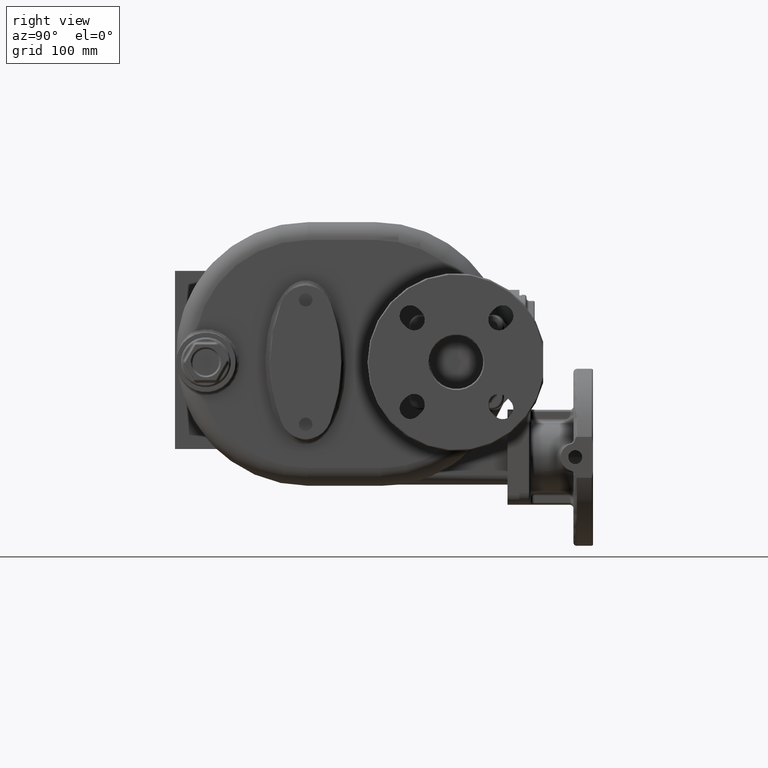
[diagram: clean part render]
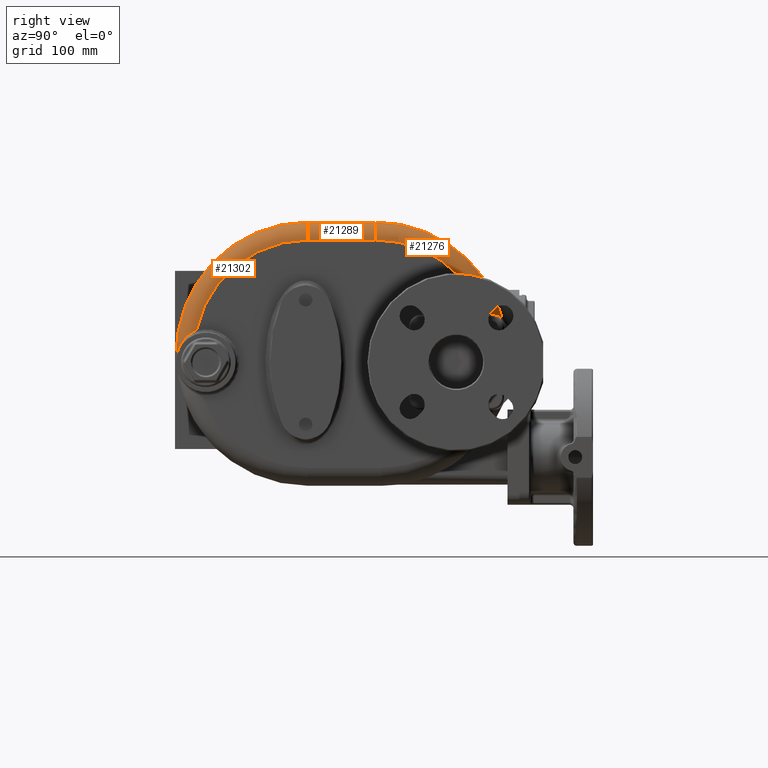
[diagram: same view with one multi-face feature highlighted, each face labeled with its STEP entity id]
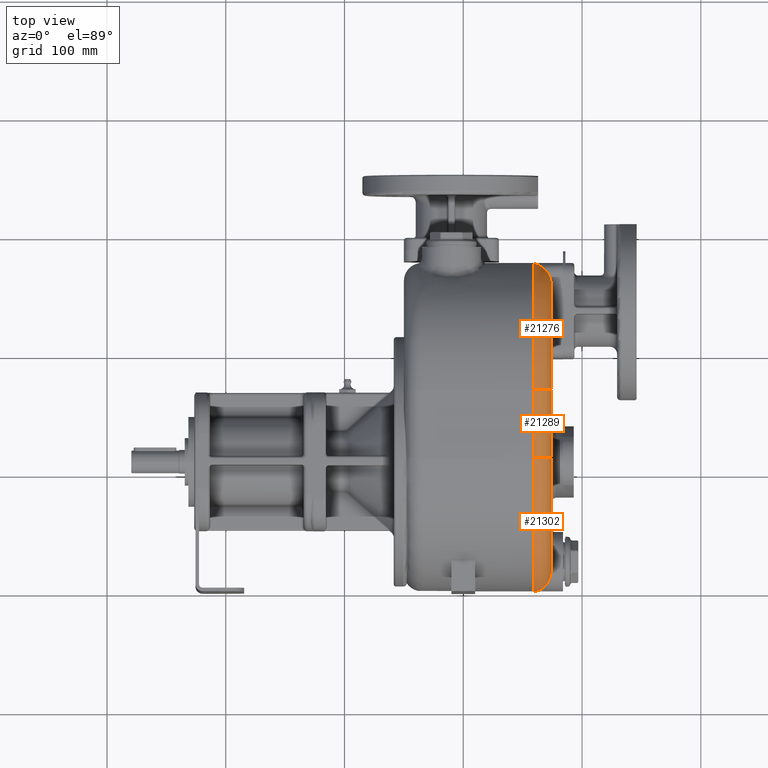
[diagram: same view with one multi-face feature highlighted, each face labeled with its STEP entity id]
A machine part, right view. The highlighted faces form ONE feature: a constant-radius fillet chain: 3 tangent blend faces with common blend radius 15 mm. The faces share edges in the B-rep.
A second angle (top view) of the same feature is appended — it is thin or edge-on in the first view.
Their STEP definitions:
[1] entity #21276 (Torus):
#2358=CARTESIAN_POINT('',(7.4E1,1.690800320256E2,0.E0));
#2359=DIRECTION('',(1.E0,0.E0,0.E0));
#2360=DIRECTION('',(0.E0,9.390612000823E-1,3.4375E-1));
#2361=AXIS2_PLACEMENT_3D('',#2358,#2359,#2360);
#2933=CARTESIAN_POINT('',(5.9E1,1.690800320256E2,0.E0));
#2934=DIRECTION('',(1.E0,0.E0,0.E0));
#2935=DIRECTION('',(0.E0,9.700967764502E-1,2.427184466019E-1));
#2936=AXIS2_PLACEMENT_3D('',#2933,#2934,#2935);
#4100=CARTESIAN_POINT('',(5.9E1,2.767607742116E2,2.694174757282E1));
#4101=CARTESIAN_POINT('',(5.919746839440E1,2.767244377512E2,2.708697709131E1));
#4102=CARTESIAN_POINT('',(5.959189906958E1,2.766437122801E2,2.737502582313E1));
#4103=CARTESIAN_POINT('',(6.018226807365E1,2.764986550011E2,2.779947994443E1));
#4104=CARTESIAN_POINT('',(6.076909059535E1,2.763304765588E2,2.821413964939E1));
#4105=CARTESIAN_POINT('',(6.135126870455E1,2.761398978827E2,2.861772689282E1));
#4106=CARTESIAN_POINT('',(6.192652221193E1,2.759281828301E2,2.900820952384E1));
#4107=CARTESIAN_POINT('',(6.249400524739E1,2.756962599716E2,2.938461357047E1));
#4108=CARTESIAN_POINT('',(6.305169911184E1,2.754456507436E2,2.974525286864E1));
#4109=CARTESIAN_POINT('',(6.359874964708E1,2.751775402531E2,3.008929529776E1));
#4110=CARTESIAN_POINT('',(6.413378455740E1,2.748934390566E2,3.041564278407E1));
#4111=CARTESIAN_POINT('',(6.465549847296E1,2.745949950051E2,3.072334993618E1));
#4112=CARTESIAN_POINT('',(6.516348937629E1,2.742834123424E2,3.101207436872E1));
#4113=CARTESIAN_POINT('',(6.565622520677E1,2.739606740147E2,3.128091283102E1));
#4114=CARTESIAN_POINT('',(6.613358402329E1,2.736279684324E2,3.152984096668E1));
#4115=CARTESIAN_POINT('',(6.659495161829E1,2.732868080250E2,3.175860693396E1));
#4116=CARTESIAN_POINT('',(6.703939250637E1,2.729390623369E2,3.196691293706E1));
#4117=CARTESIAN_POINT('',(6.746733062942E1,2.725855783424E2,3.215516750526E1));
#4118=CARTESIAN_POINT('',(6.787830842109E1,2.722278751530E2,3.232339614360E1));
#4119=CARTESIAN_POINT('',(6.827171179971E1,2.718677220485E2,3.247168145780E1));
#4120=CARTESIAN_POINT('',(6.864818580608E1,2.715057571573E2,3.260064095354E1));
#4121=CARTESIAN_POINT('',(6.900798622962E1,2.711428920063E2,3.271072580022E1));
#4122=CARTESIAN_POINT('',(6.935110827882E1,2.707802913629E2,3.280233887067E1));
#4123=CARTESIAN_POINT('',(6.967763384464E1,2.704190635248E2,3.287597545347E1));
#4124=CARTESIAN_POINT('',(6.998847065243E1,2.700593372848E2,3.293230015917E1));
#4125=CARTESIAN_POINT('',(7.028345301758E1,2.697024194876E2,3.297176426617E1));
#4126=CARTESIAN_POINT('',(7.056321356358E1,2.693486755321E2,3.299498251427E1));
#4127=CARTESIAN_POINT('',(7.073960245047E1,2.691156670345E2,3.3E1));
#4128=CARTESIAN_POINT('',(7.082531400098E1,2.69E2,3.3E1));
#4130=CARTESIAN_POINT('',(7.082531400098E1,2.69E2,3.3E1));
#4131=CARTESIAN_POINT('',(7.093651673634E1,2.688499328205E2,3.3E1));
#4132=CARTESIAN_POINT('',(7.115385606143E1,2.685453931682E2,3.3E1));
#4133=CARTESIAN_POINT('',(7.146479466459E1,2.680749577905E2,3.3E1));
#4134=CARTESIAN_POINT('',(7.175986972182E1,2.675918234654E2,3.3E1));
#4135=CARTESIAN_POINT('',(7.203879027929E1,2.670961937543E2,3.3E1));
#4136=CARTESIAN_POINT('',(7.230087186102E1,2.665890003929E2,3.3E1));
#4137=CARTESIAN_POINT('',(7.254588563776E1,2.660703604195E2,3.3E1));
#4138=CARTESIAN_POINT('',(7.277311023258E1,2.655414812383E2,3.3E1));
#4139=CARTESIAN_POINT('',(7.298238926181E1,2.650023732337E2,3.3E1));
#4140=CARTESIAN_POINT('',(7.317306629343E1,2.644543438937E2,3.3E1));
#4141=CARTESIAN_POINT('',(7.334496570226E1,2.638975145609E2,3.3E1));
#4142=CARTESIAN_POINT('',(7.349758226805E1,2.633330365235E2,3.3E1));
#4143=CARTESIAN_POINT('',(7.363063964581E1,2.627615297048E2,3.3E1));
#4144=CARTESIAN_POINT('',(7.374385511951E1,2.621836104233E2,3.3E1));
#4145=CARTESIAN_POINT('',(7.383688466086E1,2.616005349381E2,3.3E1));
#4146=CARTESIAN_POINT('',(7.390958458452E1,2.610124800344E2,3.3E1));
#4147=CARTESIAN_POINT('',(7.396166028127E1,2.604210866882E2,3.3E1));
#4148=CARTESIAN_POINT('',(7.399301759199E1,2.598264456987E2,3.3E1));
#4149=CARTESIAN_POINT('',(7.4E1,2.594289881420E2,3.3E1));
#4150=CARTESIAN_POINT('',(7.4E1,2.592299072335E2,3.3E1));
#4152=CARTESIAN_POINT('',(5.9E1,1.690800320256E2,9.6E1));
#4153=DIRECTION('',(0.E0,-1.E0,0.E0));
#4154=DIRECTION('',(1.E0,0.E0,0.E0));
#4155=AXIS2_PLACEMENT_3D('',#4152,#4153,#4154);
#13499=CARTESIAN_POINT('',(7.4E1,1.690800320256E2,9.6E1));
#13501=VERTEX_POINT('',#13499);
#13503=CARTESIAN_POINT('',(5.9E1,1.690800320256E2,1.11E2));
#13505=VERTEX_POINT('',#13503);
#13507=CARTESIAN_POINT('',(7.4E1,2.592299072335E2,3.3E1));
#13508=VERTEX_POINT('',#13507);
#13509=CARTESIAN_POINT('',(5.9E1,2.767607742116E2,2.694174757282E1));
#13510=VERTEX_POINT('',#13509);
#13511=VERTEX_POINT('',#4128);
#21262=CARTESIAN_POINT('',(5.9E1,1.690800320256E2,0.E0));
#21263=DIRECTION('',(-1.E0,0.E0,0.E0));
#21264=DIRECTION('',(0.E0,9.718786015261E-1,2.354824492305E-1));
#21265=AXIS2_PLACEMENT_3D('',#21262,#21263,#21264);
#21266=TOROIDAL_SURFACE('',#21265,9.6E1,1.5E1);
#21267=ORIENTED_EDGE('',*,*,#18890,.T.);
#21269=ORIENTED_EDGE('',*,*,#21268,.T.);
#21270=ORIENTED_EDGE('',*,*,#19246,.F.);
#21271=ORIENTED_EDGE('',*,*,#18731,.T.);
#21273=ORIENTED_EDGE('',*,*,#21272,.T.);
#21274=EDGE_LOOP('',(#21267,#21269,#21270,#21271,#21273));
#21275=FACE_OUTER_BOUND('',#21274,.F.);
#21276=ADVANCED_FACE('',(#21275),#21266,.T.);
#2362=CIRCLE('',#2361,9.6E1);
#2937=CIRCLE('',#2936,1.11E2);
#4129=B_SPLINE_CURVE_WITH_KNOTS('',3,(#4100,#4101,#4102,#4103,#4104,#4105,#4106,
#4107,#4108,#4109,#4110,#4111,#4112,#4113,#4114,#4115,#4116,#4117,#4118,#4119,
#4120,#4121,#4122,#4123,#4124,#4125,#4126,#4127,#4128),.UNSPECIFIED.,.F.,.F.,(4,
1,1,1,1,1,1,1,1,1,1,1,1,1,1,1,1,1,1,1,1,1,1,1,1,1,4),(0.E0,3.846153846154E-2,
7.692307692308E-2,1.153846153846E-1,1.538461538462E-1,1.923076923077E-1,
2.307692307692E-1,2.692307692308E-1,3.076923076923E-1,3.461538461538E-1,
3.846153846154E-1,4.230769230769E-1,4.615384615385E-1,5.E-1,5.384615384615E-1,
5.769230769231E-1,6.153846153846E-1,6.538461538462E-1,6.923076923077E-1,
7.307692307692E-1,7.692307692308E-1,8.076923076923E-1,8.461538461538E-1,
8.846153846154E-1,9.230769230769E-1,9.615384615385E-1,1.E0),.UNSPECIFIED.);
#4151=B_SPLINE_CURVE_WITH_KNOTS('',3,(#4130,#4131,#4132,#4133,#4134,#4135,#4136,
#4137,#4138,#4139,#4140,#4141,#4142,#4143,#4144,#4145,#4146,#4147,#4148,#4149,
#4150),.UNSPECIFIED.,.F.,.F.,(4,1,1,1,1,1,1,1,1,1,1,1,1,1,1,1,1,1,4),(0.E0,
5.555555555556E-2,1.111111111111E-1,1.666666666667E-1,2.222222222222E-1,
2.777777777778E-1,3.333333333333E-1,3.888888888889E-1,4.444444444444E-1,5.E-1,
5.555555555556E-1,6.111111111111E-1,6.666666666667E-1,7.222222222222E-1,
7.777777777778E-1,8.333333333333E-1,8.888888888889E-1,9.444444444444E-1,1.E0),
.UNSPECIFIED.);
#4156=CIRCLE('',#4155,1.5E1);
#18731=EDGE_CURVE('',#13510,#13511,#4129,.T.);
#18890=EDGE_CURVE('',#13508,#13501,#2362,.T.);
#19246=EDGE_CURVE('',#13510,#13505,#2937,.T.);
#21268=EDGE_CURVE('',#13501,#13505,#4156,.T.);
#21272=EDGE_CURVE('',#13511,#13508,#4151,.T.);
[2] entity #21289 (Cylinder):
#2354=DIRECTION('',(0.E0,-1.E0,0.E0));
#2355=VECTOR('',#2354,5.708003202563E1);
#2356=CARTESIAN_POINT('',(7.4E1,1.690800320256E2,9.6E1));
#2357=LINE('',#2356,#2355);
#2870=DIRECTION('',(0.E0,-1.E0,0.E0));
#2871=VECTOR('',#2870,5.708003202559E1);
#2872=CARTESIAN_POINT('',(5.9E1,1.690800320256E2,1.11E2));
#2873=LINE('',#2872,#2871);
#4152=CARTESIAN_POINT('',(5.9E1,1.690800320256E2,9.6E1));
#4153=DIRECTION('',(0.E0,-1.E0,0.E0));
#4154=DIRECTION('',(1.E0,0.E0,0.E0));
#4155=AXIS2_PLACEMENT_3D('',#4152,#4153,#4154);
#4217=CARTESIAN_POINT('',(5.9E1,1.12E2,9.6E1));
#4218=DIRECTION('',(0.E0,-1.E0,0.E0));
#4219=DIRECTION('',(1.E0,0.E0,0.E0));
#4220=AXIS2_PLACEMENT_3D('',#4217,#4218,#4219);
#13499=CARTESIAN_POINT('',(7.4E1,1.690800320256E2,9.6E1));
#13500=CARTESIAN_POINT('',(7.4E1,1.12E2,9.6E1));
#13501=VERTEX_POINT('',#13499);
#13502=VERTEX_POINT('',#13500);
#13503=CARTESIAN_POINT('',(5.9E1,1.690800320256E2,1.11E2));
#13504=CARTESIAN_POINT('',(5.9E1,1.12E2,1.11E2));
#13505=VERTEX_POINT('',#13503);
#13506=VERTEX_POINT('',#13504);
#21277=CARTESIAN_POINT('',(5.9E1,1.699072227307E2,9.6E1));
#21278=DIRECTION('',(0.E0,-1.E0,0.E0));
#21279=DIRECTION('',(1.E0,0.E0,0.E0));
#21280=AXIS2_PLACEMENT_3D('',#21277,#21278,#21279);
#21281=CYLINDRICAL_SURFACE('',#21280,1.5E1);
#21282=ORIENTED_EDGE('',*,*,#18888,.T.);
#21284=ORIENTED_EDGE('',*,*,#21283,.T.);
#21285=ORIENTED_EDGE('',*,*,#19232,.F.);
#21286=ORIENTED_EDGE('',*,*,#21268,.F.);
#21287=EDGE_LOOP('',(#21282,#21284,#21285,#21286));
#21288=FACE_OUTER_BOUND('',#21287,.F.);
#21289=ADVANCED_FACE('',(#21288),#21281,.T.);
#4156=CIRCLE('',#4155,1.5E1);
#4221=CIRCLE('',#4220,1.5E1);
#18888=EDGE_CURVE('',#13501,#13502,#2357,.T.);
#19232=EDGE_CURVE('',#13505,#13506,#2873,.T.);
#21268=EDGE_CURVE('',#13501,#13505,#4156,.T.);
#21283=EDGE_CURVE('',#13502,#13506,#4221,.T.);
[3] entity #21302 (Torus):
#2349=CARTESIAN_POINT('',(7.4E1,1.12E2,0.E0));
#2350=DIRECTION('',(1.E0,0.E0,0.E0));
#2351=DIRECTION('',(0.E0,0.E0,1.E0));
#2352=AXIS2_PLACEMENT_3D('',#2349,#2350,#2351);
#2710=CARTESIAN_POINT('',(5.9E1,1.12E2,0.E0));
#2711=DIRECTION('',(1.E0,0.E0,0.E0));
#2712=DIRECTION('',(0.E0,0.E0,1.E0));
#2713=AXIS2_PLACEMENT_3D('',#2710,#2711,#2712);
#4157=CARTESIAN_POINT('',(5.899999999683E1,1.093646326384E0,-4.558222339772E0));
#4158=CARTESIAN_POINT('',(5.903516390582E1,1.093645443167E0,-4.558109666710E0));
#4159=CARTESIAN_POINT('',(5.910585212802E1,1.093712664028E0,-4.554375527491E0));
#4160=CARTESIAN_POINT('',(5.921261581553E1,1.094444736616E0,-4.544375485974E0));
#4161=CARTESIAN_POINT('',(5.932127580690E1,1.095643724331E0,-4.526580419853E0));
#4162=CARTESIAN_POINT('',(5.943245064643E1,1.097400122014E0,-4.501196089746E0));
#4163=CARTESIAN_POINT('',(5.954672512987E1,1.099744455395E0,-4.467045887852E0));
#4164=CARTESIAN_POINT('',(5.966450182566E1,1.102752768761E0,-4.423545842997E0));
#4165=CARTESIAN_POINT('',(5.978695512326E1,1.106536544096E0,-4.369759807809E0));
#4166=CARTESIAN_POINT('',(5.991863313025E1,1.111378562668E0,-4.302648045104E0));
#4167=CARTESIAN_POINT('',(6.006353441733E1,1.117684533036E0,-4.218157070819E0));
#4168=CARTESIAN_POINT('',(6.022129492605E1,1.125796565850E0,-4.114368699312E0));
#4169=CARTESIAN_POINT('',(6.038966079280E1,1.135941442840E0,-3.990609453592E0));
#4170=CARTESIAN_POINT('',(6.057049508462E1,1.148617011430E0,-3.843495384098E0));
#4171=CARTESIAN_POINT('',(6.076629395225E1,1.164545967974E0,-3.669114768959E0));
#4172=CARTESIAN_POINT('',(6.097917903196E1,1.184640274317E0,-3.464039655399E0));
#4173=CARTESIAN_POINT('',(6.121034358513E1,1.209883076884E0,-3.224018998522E0));
#4174=CARTESIAN_POINT('',(6.146132932017E1,1.241556900750E0,-2.945644411446E0));
#4175=CARTESIAN_POINT('',(6.173373164181E1,1.281226102266E0,-2.625632696241E0));
#4176=CARTESIAN_POINT('',(6.202992366742E1,1.330891140225E0,-2.258629715281E0));
#4177=CARTESIAN_POINT('',(6.235266244673E1,1.393127801764E0,-1.840276345668E0));
#4178=CARTESIAN_POINT('',(6.270542913802E1,1.471243058738E0,-1.363643995873E0));
#4179=CARTESIAN_POINT('',(6.309243958759E1,1.569569922772E0,
-8.217885811717E-1));
#4180=CARTESIAN_POINT('',(6.351782750994E1,1.693554930227E0,
-2.067237698218E-1));
#4181=CARTESIAN_POINT('',(6.398777318508E1,1.850491550237E0,4.921266148256E-1));
#4182=CARTESIAN_POINT('',(6.451711548714E1,2.053820743384E0,1.299722093649E0));
#4183=CARTESIAN_POINT('',(6.508490601498E1,2.305309164020E0,2.186357343773E0));
#4184=CARTESIAN_POINT('',(6.565936924102E1,2.597051065920E0,3.101531710496E0));
#4185=CARTESIAN_POINT('',(6.621031164502E1,2.913645827058E0,3.993962241456E0));
#4186=CARTESIAN_POINT('',(6.674656993093E1,3.258188471281E0,4.875124901900E0));
#4187=CARTESIAN_POINT('',(6.726735590007E1,3.629810174473E0,5.742156258984E0));
#4188=CARTESIAN_POINT('',(6.777004177829E1,4.025595219076E0,6.589331033677E0));
#4189=CARTESIAN_POINT('',(6.825458452284E1,4.444320079709E0,7.415649359446E0));
#4190=CARTESIAN_POINT('',(6.872068390750E1,4.884603867434E0,8.219836079150E0));
#4191=CARTESIAN_POINT('',(6.916780649495E1,5.344790938057E0,9.000526857096E0));
#4192=CARTESIAN_POINT('',(6.959551445712E1,5.823213197602E0,9.756541524794E0));
#4193=CARTESIAN_POINT('',(7.000350376933E1,6.318282577911E0,1.048711075603E1));
#4194=CARTESIAN_POINT('',(7.039148020803E1,6.828357798489E0,1.119154427958E1));
#4195=CARTESIAN_POINT('',(7.075925351473E1,7.351861435885E0,1.186934445168E1));
#4196=CARTESIAN_POINT('',(7.110663302950E1,7.887164488044E0,1.252013888038E1));
#4197=CARTESIAN_POINT('',(7.143350313669E1,8.432667537810E0,1.314366122419E1));
#4198=CARTESIAN_POINT('',(7.173986886508E1,8.986913448833E0,1.373986936416E1));
#4199=CARTESIAN_POINT('',(7.202573425666E1,9.548411502810E0,1.430880624192E1));
#4200=CARTESIAN_POINT('',(7.229115983699E1,1.011570714669E1,1.485057895429E1));
#4201=CARTESIAN_POINT('',(7.253633050093E1,1.068756621728E1,1.536549965758E1));
#4202=CARTESIAN_POINT('',(7.276142506826E1,1.126274376120E1,1.585395334228E1));
#4203=CARTESIAN_POINT('',(7.296666219006E1,1.184006100135E1,1.631638405673E1));
#4204=CARTESIAN_POINT('',(7.315230502308E1,1.241843311329E1,1.675328321513E1));
#4205=CARTESIAN_POINT('',(7.331866323435E1,1.299692005857E1,1.716520882045E1));
#4206=CARTESIAN_POINT('',(7.346601632261E1,1.357449778155E1,1.755275734250E1));
#4207=CARTESIAN_POINT('',(7.359468621800E1,1.415025115964E1,1.791655671576E1));
#4208=CARTESIAN_POINT('',(7.370502834271E1,1.472339423966E1,1.825725714688E1));
#4209=CARTESIAN_POINT('',(7.379742363094E1,1.529333358758E1,1.857558792737E1));
#4210=CARTESIAN_POINT('',(7.387222672912E1,1.585943269281E1,1.887232565443E1));
#4211=CARTESIAN_POINT('',(7.392980578356E1,1.642119521376E1,1.914822491976E1));
#4212=CARTESIAN_POINT('',(7.397051848075E1,1.697827701764E1,1.940401132880E1));
#4213=CARTESIAN_POINT('',(7.399469897908E1,1.753023538529E1,1.964041549998E1));
#4214=CARTESIAN_POINT('',(7.399999342684E1,1.789459046853E1,1.978567909966E1));
#4215=CARTESIAN_POINT('',(7.399999609717E1,1.807573326154E1,1.985527873442E1));
#4217=CARTESIAN_POINT('',(5.9E1,1.12E2,9.6E1));
#4218=DIRECTION('',(0.E0,-1.E0,0.E0));
#4219=DIRECTION('',(1.E0,0.E0,0.E0));
#4220=AXIS2_PLACEMENT_3D('',#4217,#4218,#4219);
#13500=CARTESIAN_POINT('',(7.4E1,1.12E2,9.6E1));
#13502=VERTEX_POINT('',#13500);
#13504=CARTESIAN_POINT('',(5.9E1,1.12E2,1.11E2));
#13506=VERTEX_POINT('',#13504);
#13559=VERTEX_POINT('',#4157);
#13560=VERTEX_POINT('',#4215);
#21290=CARTESIAN_POINT('',(5.9E1,1.12E2,0.E0));
#21291=DIRECTION('',(-1.E0,0.E0,0.E0));
#21292=DIRECTION('',(0.E0,7.452099538963E-3,9.999722327207E-1));
#21293=AXIS2_PLACEMENT_3D('',#21290,#21291,#21292);
#21294=TOROIDAL_SURFACE('',#21293,9.6E1,1.5E1);
#21296=ORIENTED_EDGE('',*,*,#21295,.F.);
#21297=ORIENTED_EDGE('',*,*,#19155,.F.);
#21298=ORIENTED_EDGE('',*,*,#21283,.F.);
#21299=ORIENTED_EDGE('',*,*,#18886,.T.);
#21300=EDGE_LOOP('',(#21296,#21297,#21298,#21299));
#21301=FACE_OUTER_BOUND('',#21300,.F.);
#21302=ADVANCED_FACE('',(#21301),#21294,.T.);
#2353=CIRCLE('',#2352,9.6E1);
#2714=CIRCLE('',#2713,1.11E2);
#4216=B_SPLINE_CURVE_WITH_KNOTS('',3,(#4157,#4158,#4159,#4160,#4161,#4162,#4163,
#4164,#4165,#4166,#4167,#4168,#4169,#4170,#4171,#4172,#4173,#4174,#4175,#4176,
#4177,#4178,#4179,#4180,#4181,#4182,#4183,#4184,#4185,#4186,#4187,#4188,#4189,
#4190,#4191,#4192,#4193,#4194,#4195,#4196,#4197,#4198,#4199,#4200,#4201,#4202,
#4203,#4204,#4205,#4206,#4207,#4208,#4209,#4210,#4211,#4212,#4213,#4214,#4215),
.UNSPECIFIED.,.F.,.F.,(4,1,1,1,1,1,1,1,1,1,1,1,1,1,1,1,1,1,1,1,1,1,1,1,1,1,1,1,
1,1,1,1,1,1,1,1,1,1,1,1,1,1,1,1,1,1,1,1,1,1,1,1,1,1,1,1,4),(0.E0,
1.785714285714E-2,3.571428571429E-2,5.357142857143E-2,7.142857142857E-2,
8.928571428571E-2,1.071428571429E-1,1.25E-1,1.428571428571E-1,1.607142857143E-1,
1.785714285714E-1,1.964285714286E-1,2.142857142857E-1,2.321428571429E-1,2.5E-1,
2.678571428571E-1,2.857142857143E-1,3.035714285714E-1,3.214285714286E-1,
3.392857142857E-1,3.571428571429E-1,3.75E-1,3.928571428571E-1,4.107142857143E-1,
4.285714285714E-1,4.464285714286E-1,4.642857142857E-1,4.821428571429E-1,5.E-1,
5.178571428571E-1,5.357142857143E-1,5.535714285714E-1,5.714285714286E-1,
5.892857142857E-1,6.071428571429E-1,6.25E-1,6.428571428571E-1,6.607142857143E-1,
6.785714285714E-1,6.964285714286E-1,7.142857142857E-1,7.321428571429E-1,7.5E-1,
7.678571428571E-1,7.857142857143E-1,8.035714285714E-1,8.214285714286E-1,
8.392857142857E-1,8.571428571429E-1,8.75E-1,8.928571428571E-1,9.107142857143E-1,
9.285714285714E-1,9.464285714286E-1,9.642857142857E-1,9.821428571429E-1,1.E0),
.UNSPECIFIED.);
#4221=CIRCLE('',#4220,1.5E1);
#18886=EDGE_CURVE('',#13502,#13560,#2353,.T.);
#19155=EDGE_CURVE('',#13506,#13559,#2714,.T.);
#21283=EDGE_CURVE('',#13502,#13506,#4221,.T.);
#21295=EDGE_CURVE('',#13559,#13560,#4216,.T.);